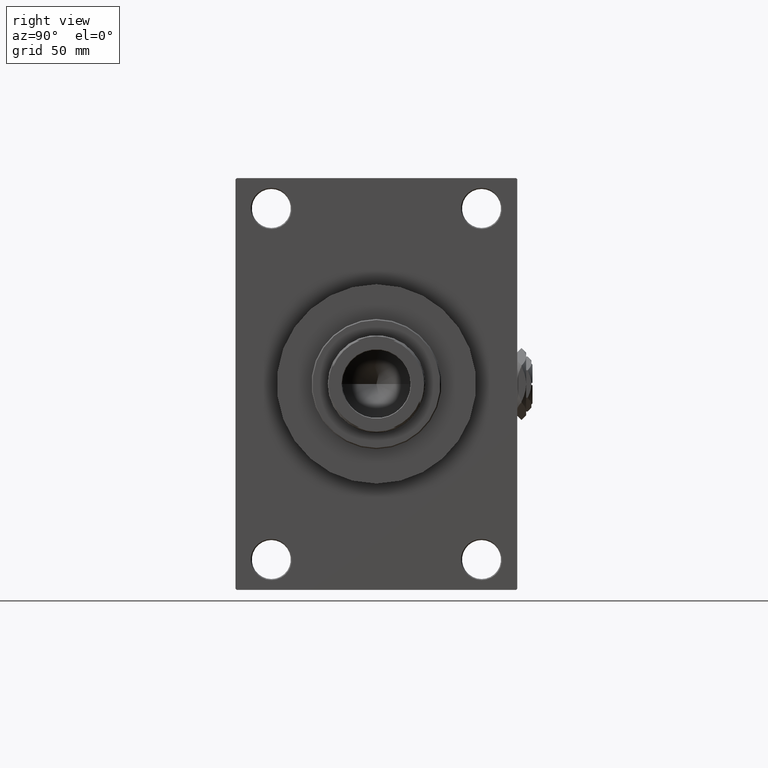
[diagram: clean part render]
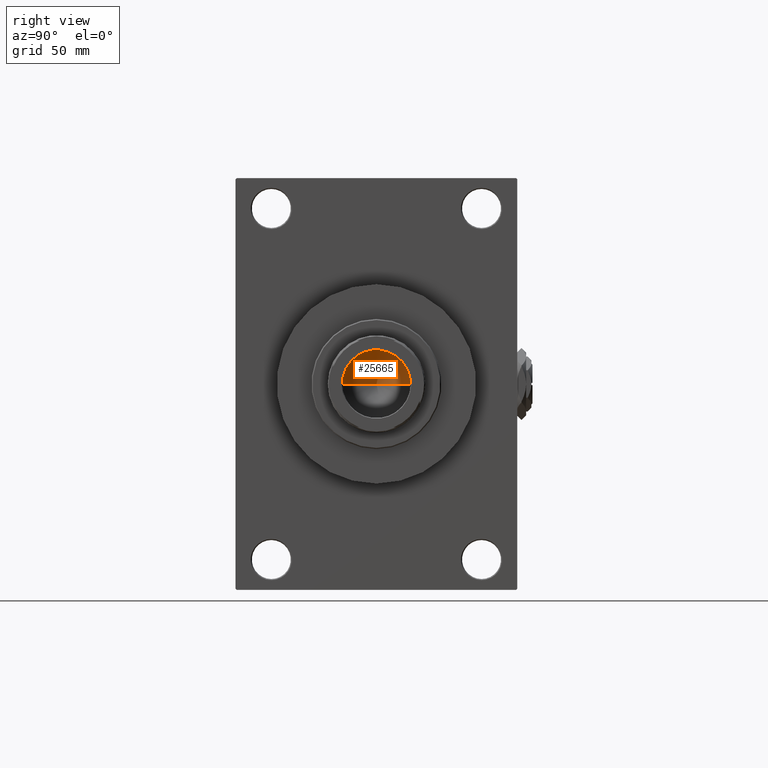
[diagram: same view with one face highlighted and labeled with its STEP entity id]
A machine part, right view. The second image highlights one B-rep face of the part: STEP entity #25665.
In plain terms, the highlighted conical surface has half-angle 59 deg.
Its self-contained STEP definition (entity closure, byte-faithful):
#125 = DIRECTION ( 'NONE',  ( 0.8571673007021115565, 0.000000000000000000, 0.5150380749100554878 ) ) ;
#272 = CARTESIAN_POINT ( 'NONE',  ( 0.000000000000000000, 0.000000000000000000, 123.0000000000000284 ) ) ;
#1778 = AXIS2_PLACEMENT_3D ( 'NONE', #28031, #39115, #42636 ) ;
#2244 = EDGE_LOOP ( 'NONE', ( #36642, #3031, #34488 ) ) ;
#2363 = CARTESIAN_POINT ( 'NONE',  ( -15.74999999999998934, 1.928818708657080161E-15, 123.0000000000000284 ) ) ;
#3031 = ORIENTED_EDGE ( 'NONE', *, *, #32920, .T. ) ;
#3696 = CONICAL_SURFACE ( 'NONE', #19734, 15.74999999999998934, 1.029744258676652979 ) ;
#4197 = CIRCLE ( 'NONE', #1778, 15.74999999999998934 ) ;
#9535 = CARTESIAN_POINT ( 'NONE',  ( -1.497379240617067851E-14, 0.000000000000000000, 113.5364452503159356 ) ) ;
#12366 = LINE ( 'NONE', #36274, #47338 ) ;
#15471 = VERTEX_POINT ( 'NONE', #34879 ) ;
#18763 = VECTOR ( 'NONE', #44902, 1000.000000000000000 ) ;
#19734 = AXIS2_PLACEMENT_3D ( 'NONE', #272, #26724, #42314 ) ;
#20291 = CARTESIAN_POINT ( 'NONE',  ( -15.74999999999998934, 1.928818708657080161E-15, 123.0000000000000284 ) ) ;
#21234 = LINE ( 'NONE', #2363, #18763 ) ;
#23423 = FACE_OUTER_BOUND ( 'NONE', #2244, .T. ) ;
#25665 = ADVANCED_FACE ( 'NONE', ( #23423 ), #3696, .F. ) ;
#26724 = DIRECTION ( 'NONE',  ( -0.000000000000000000, -0.000000000000000000, 1.000000000000000000 ) ) ;
#28031 = CARTESIAN_POINT ( 'NONE',  ( 0.000000000000000000, 0.000000000000000000, 123.0000000000000284 ) ) ;
#29116 = EDGE_CURVE ( 'NONE', #37189, #15471, #4197, .T. ) ;
#32920 = EDGE_CURVE ( 'NONE', #39339, #37189, #21234, .T. ) ;
#34488 = ORIENTED_EDGE ( 'NONE', *, *, #29116, .T. ) ;
#34879 = CARTESIAN_POINT ( 'NONE',  ( 15.74999999999998934, 0.000000000000000000, 123.0000000000000284 ) ) ;
#36274 = CARTESIAN_POINT ( 'NONE',  ( 15.74999999999998934, 0.000000000000000000, 123.0000000000000284 ) ) ;
#36642 = ORIENTED_EDGE ( 'NONE', *, *, #48104, .F. ) ;
#37189 = VERTEX_POINT ( 'NONE', #20291 ) ;
#39115 = DIRECTION ( 'NONE',  ( -0.000000000000000000, -0.000000000000000000, 1.000000000000000000 ) ) ;
#39339 = VERTEX_POINT ( 'NONE', #9535 ) ;
#42314 = DIRECTION ( 'NONE',  ( 1.000000000000000000, 0.000000000000000000, 0.000000000000000000 ) ) ;
#42636 = DIRECTION ( 'NONE',  ( 1.000000000000000000, 0.000000000000000000, 0.000000000000000000 ) ) ;
#44902 = DIRECTION ( 'NONE',  ( -0.8571673007021115565, 1.049727191138617710E-16, 0.5150380749100554878 ) ) ;
#47338 = VECTOR ( 'NONE', #125, 1000.000000000000000 ) ;
#48104 = EDGE_CURVE ( 'NONE', #39339, #15471, #12366, .T. ) ;